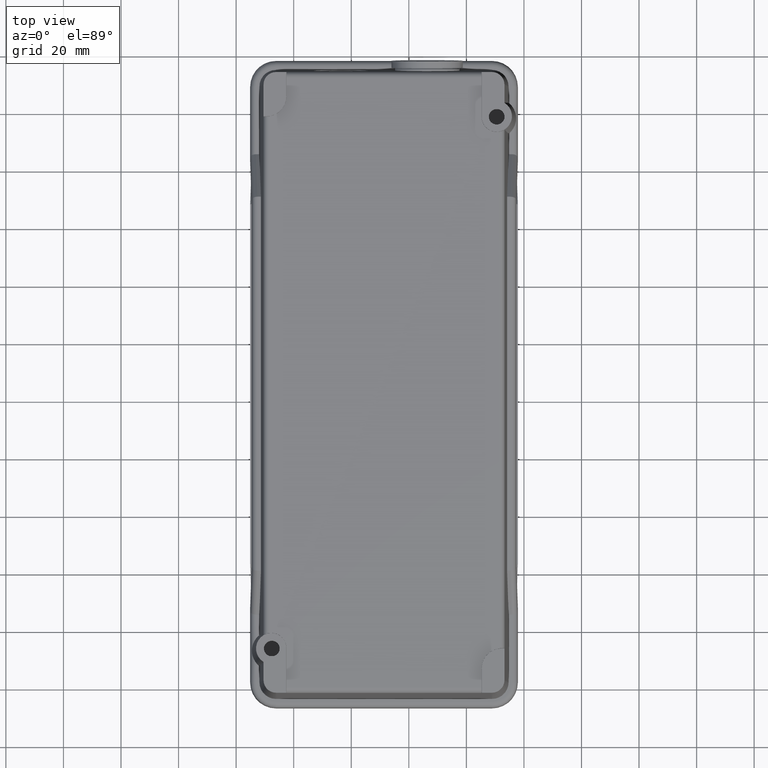
[diagram: clean part render]
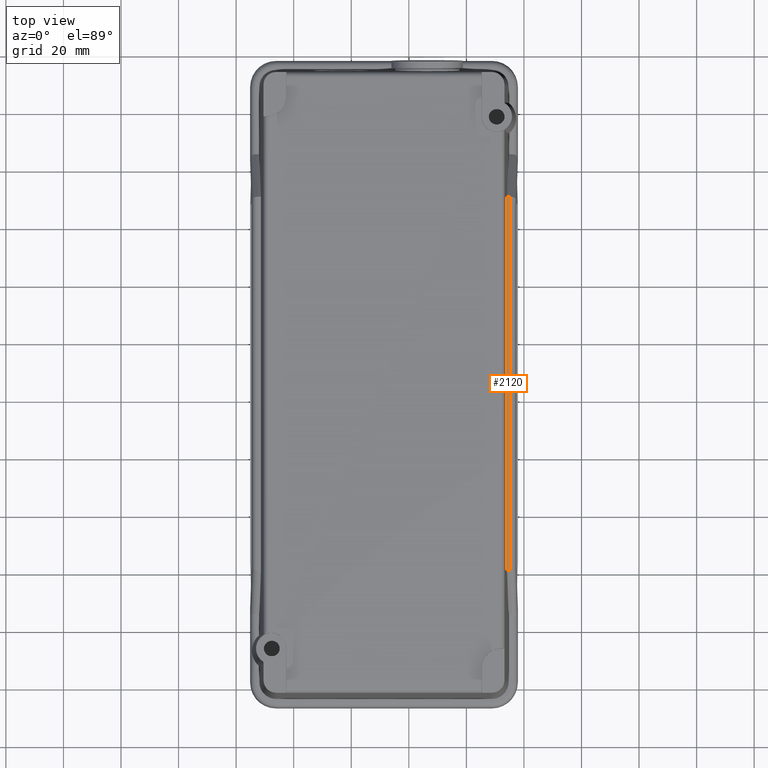
[diagram: same view with one face highlighted and labeled with its STEP entity id]
A machine part, top view. The second image highlights one B-rep face of the part: STEP entity #2120.
In plain terms, the highlighted face is a freeform B-spline surface patch.
Its self-contained STEP definition (entity closure, byte-faithful):
#1050=CARTESIAN_POINT('',(74.151211069077121,20.614305635197852,21.015587699999983));
#1051=VERTEX_POINT('',#1050);
#1058=CARTESIAN_POINT('',(74.151211069077220,150.584868383675000,21.015587699999983));
#1059=VERTEX_POINT('',#1058);
#1060=CARTESIAN_POINT('',(74.151211069077121,20.614305635197852,21.015587699999983));
#1061=DIRECTION('',(0.0,1.0,0.0));
#1062=VECTOR('',#1061,129.970562748477160);
#1063=LINE('',#1060,#1062);
#1064=EDGE_CURVE('',#1051,#1059,#1063,.T.);
#1285=CARTESIAN_POINT('',(75.219833519464885,150.584720487304590,21.015587699999983));
#1286=VERTEX_POINT('',#1285);
#1287=CARTESIAN_POINT('',(75.219833519464899,20.614453531568220,21.015587699999987));
#1288=VERTEX_POINT('',#1287);
#1289=CARTESIAN_POINT('',(75.219833519464885,150.584720487304590,21.015587699999983));
#1290=DIRECTION('',(0.0,-1.0,0.0));
#1291=VECTOR('',#1290,129.970266955736380);
#1292=LINE('',#1289,#1291);
#1293=EDGE_CURVE('',#1286,#1288,#1292,.T.);
#1329=CARTESIAN_POINT('',(75.199377406305132,150.584868383675000,21.015587699999983));
#1330=VERTEX_POINT('',#1329);
#1337=CARTESIAN_POINT('',(75.149991980481403,147.756441258928820,21.015587699999983));
#1338=DIRECTION('',(-1.164820E-018,-3.335609E-017,-1.0));
#1339=DIRECTION('',(0.034899496702501,0.999390827019096,-3.337642E-017));
#1340=AXIS2_PLACEMENT_3D('',#1337,#1338,#1339);
#1341=ELLIPSE('',#1340,2.829289281881153,2.000000000000000);
#1342=EDGE_CURVE('',#1330,#1286,#1341,.T.);
#1478=CARTESIAN_POINT('',(75.199377406305160,20.614305635197852,21.015587699999983));
#1479=VERTEX_POINT('',#1478);
#1503=CARTESIAN_POINT('',(75.149991980481417,23.442732759944008,21.015587699999983));
#1504=DIRECTION('',(0.0,0.0,-1.0));
#1505=DIRECTION('',(0.034899496702501,-0.999390827019096,0.0));
#1506=AXIS2_PLACEMENT_3D('',#1503,#1504,#1505);
#1507=ELLIPSE('',#1506,2.829289281881158,2.0);
#1508=EDGE_CURVE('',#1288,#1479,#1507,.T.);
#2091=CARTESIAN_POINT('',(74.151211069077121,20.614305635197852,21.015587699999983));
#2092=DIRECTION('',(1.0,0.0,0.0));
#2093=VECTOR('',#2092,1.048166337228039);
#2094=LINE('',#2091,#2093);
#2095=EDGE_CURVE('',#1051,#1479,#2094,.T.);
#2102=CARTESIAN_POINT('',(75.219833519464999,150.584868383675030,21.015587699999983));
#2103=CARTESIAN_POINT('',(74.151211069077121,150.584868383675030,21.015587699999983));
#2104=CARTESIAN_POINT('',(75.219833519464913,20.614305635197837,21.015587699999983));
#2105=CARTESIAN_POINT('',(74.151211069077021,20.614305635197837,21.015587699999983));
#2106=B_SPLINE_SURFACE_WITH_KNOTS('',1,1,((#2102,#2104),(#2103,#2105)),.UNSPECIFIED.,.F.,.F.,.U.,(2,2),(2,2),(0.0,1.068622450387878),(0.0,129.970562748477190),.UNSPECIFIED.);
#2107=ORIENTED_EDGE('',*,*,#1508,.F.);
#2108=ORIENTED_EDGE('',*,*,#1293,.F.);
#2109=ORIENTED_EDGE('',*,*,#1342,.F.);
#2110=CARTESIAN_POINT('',(74.151211069077220,150.584868383675000,21.015587699999983));
#2111=DIRECTION('',(1.0,0.0,0.0));
#2112=VECTOR('',#2111,1.048166337227912);
#2113=LINE('',#2110,#2112);
#2114=EDGE_CURVE('',#1059,#1330,#2113,.T.);
#2115=ORIENTED_EDGE('',*,*,#2114,.F.);
#2116=ORIENTED_EDGE('',*,*,#1064,.F.);
#2117=ORIENTED_EDGE('',*,*,#2095,.T.);
#2118=EDGE_LOOP('',(#2107,#2108,#2109,#2115,#2116,#2117));
#2119=FACE_OUTER_BOUND('',#2118,.T.);
#2120=ADVANCED_FACE('',(#2119),#2106,.T.);